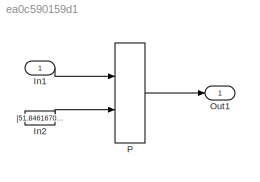
MODEL slx_ea0c590159d1
KIND model
CONFIG AbsTol = auto
CONFIG EnableMultiTasking = off
CONFIG FixedStep = auto
CONFIG MaxStep = auto
CONFIG MinStep = auto
CONFIG RelTol = 1e-3
CONFIG SampleTimeConstraint = Unconstrained
CONFIG Solver = FixedStepDiscrete
CONFIG SolverName = FixedStepDiscrete
CONFIG StartTime = 0.0
CONFIG StopTime = 10.0
BLOCK [Inport] In1
  IconDisplay = Port number
  OutDataTypeStr = double
  PortDimensions = 1
BLOCK [Constant] In2
  Value = [51.8461670083125 53.3461670083125 54.8461670083125 56.3461670083125 57.8461670083125 59.3461670083125 60.8461670083125 62.3461670083125 63.8461670083125 65.3461670083125 66.8461670083125 68.3461670083125 69.8461670083125 71.3461670083125 72.8461670083125 74.3461670083125 75.8461670083125 77.3461670083125 78.8461670083125 80.3461670083125 81.8461670083125 83.3461670083125 84.8461670083125 86.34616...<+128ch>
BLOCK [Outport] Out1
  IconDisplay = Port number
BLOCK [PreLookup] P
  BeginIndexSearchUsingPreviousIndexResult = on
  BreakpointDataTypeStr = int16
  BreakpointsData = [10:10:110]
  BreakpointsDataSource = Input port
  InitFcn = elems(1) = Simulink.BusElement;\nelems(1).Name = 'Index';\nelems(1).DataType = 'int8';\nelems(2) = Simulink.BusElement;\nelems(2).Name = 'Fraction';\nelems(2).DataType = 'double';\nkfBus = Simulink.Bus;\nkfBus.Elements = elems;\nclear elems;\nassignin('base', 'kfBus', kfBus);
  InputPortMap = u0,p1
  OutputBusDataTypeStr = Bus: kfBus
  OutputSelection = Index and fraction as bus
  Ports = [2, 1]
LINE In1:1 -> P:1
LINE In2:1 -> P:2
LINE P:1 -> Out1:1
